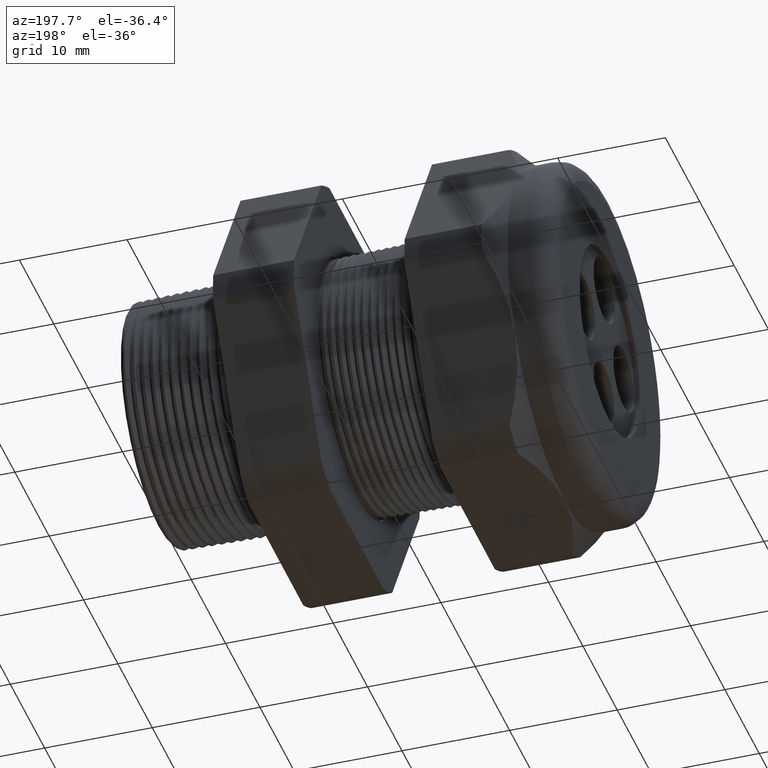
[diagram: clean part render]
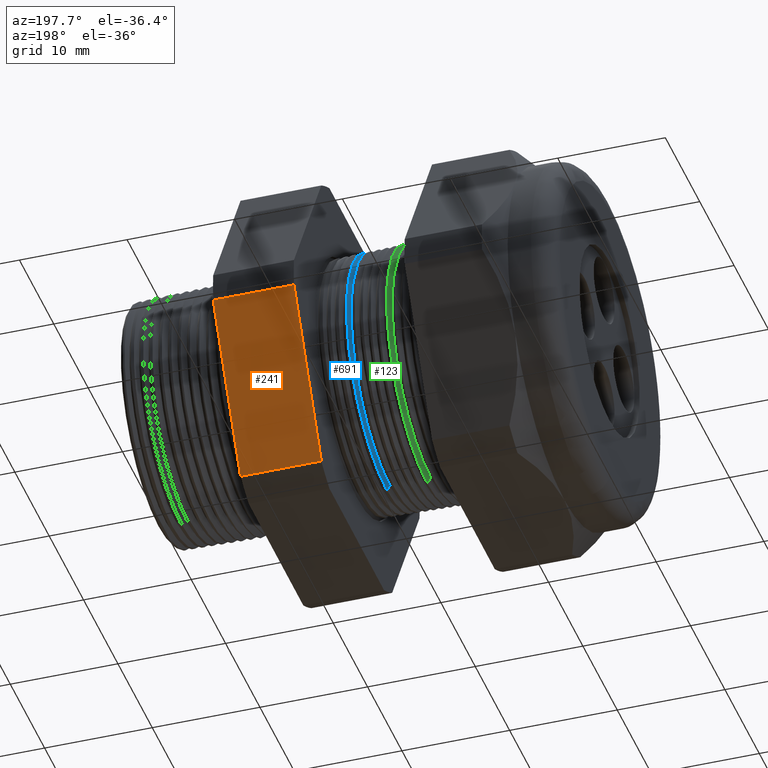
[diagram: same view with three faces highlighted in distinct colors, each labeled with its STEP entity id]
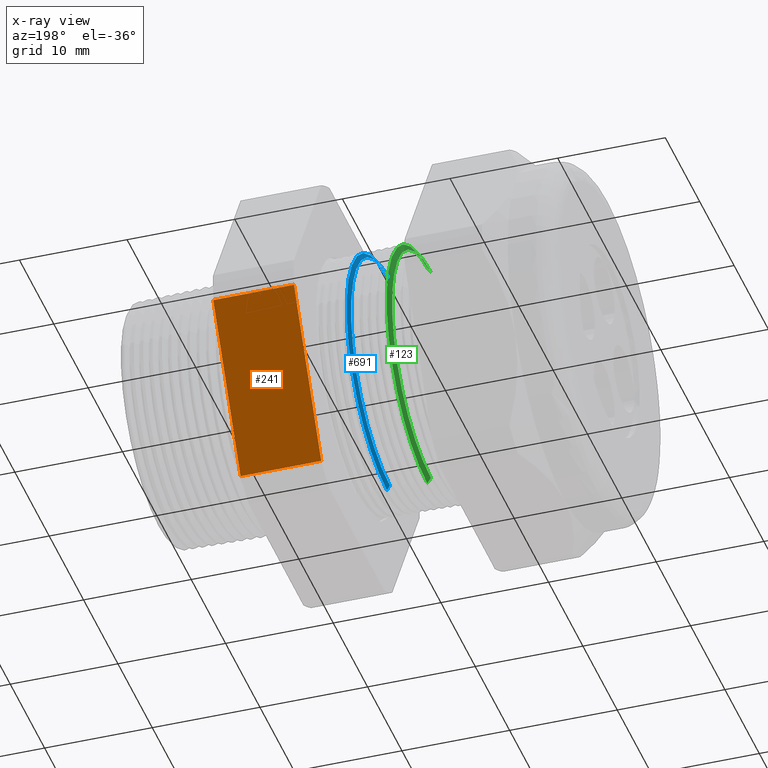
[diagram: x-ray of the same camera — body ghosted, the three highlighted faces saturated]
A machine part, auxiliary view with three faces highlighted in distinct colors.
The next image is the same camera in x-ray (body ghosted, the three faces saturated) — at least one of them is partly hidden behind the body in this view.
Their STEP definitions:

[orange] entity #241 — the highlighted planar face has unit normal (0, 0.866, -0.5).
#162 = EDGE_CURVE ( 'NONE', #5419, #5575, #1106, .T. ) ;
#241 = ADVANCED_FACE ( 'NONE', ( #1212 ), #1215, .T. ) ;
#242 = EDGE_LOOP ( 'NONE', ( #243, #244, #245, #246 ) ) ;
#243 = ORIENTED_EDGE ( 'NONE', *, *, #263, .T. ) ;
#244 = ORIENTED_EDGE ( 'NONE', *, *, #5577, .F. ) ;
#245 = ORIENTED_EDGE ( 'NONE', *, *, #162, .F. ) ;
#246 = ORIENTED_EDGE ( 'NONE', *, *, #5417, .F. ) ;
#263 = EDGE_CURVE ( 'NONE', #5418, #5578, #1189, .T. ) ;
#1103 = DIRECTION ( 'NONE',  ( -1.000000000000000000, 0.0000000000000000000, 0.0000000000000000000 ) ) ;
#1104 = VECTOR ( 'NONE', #1103, 39.37007874015748100 ) ;
#1105 = CARTESIAN_POINT ( 'NONE',  ( 0.1200000000000000900, 0.7194909755756818700, -0.05380507471562089700 ) ) ;
#1106 = LINE ( 'NONE', #1105, #1104 ) ;
#1182 = DIRECTION ( 'NONE',  ( -1.000000000000000000, 0.0000000000000000000, 0.0000000000000000000 ) ) ;
#1183 = VECTOR ( 'NONE', #1182, 39.37007874015748100 ) ;
#1184 = CARTESIAN_POINT ( 'NONE',  ( 0.1200000000000000900, 0.4063420493440886800, -0.5961949252843790100 ) ) ;
#1189 = LINE ( 'NONE', #1184, #1183 ) ;
#1208 = DIRECTION ( 'NONE',  ( 0.0000000000000000000, 0.4999999999999996100, 0.8660254037844388200 ) ) ;
#1209 = DIRECTION ( 'NONE',  ( 0.0000000000000000000, 0.8660254037844388200, -0.4999999999999996100 ) ) ;
#1210 = CARTESIAN_POINT ( 'NONE',  ( 0.1200000000000000900, 0.7194909755756818700, -0.05380507471562089700 ) ) ;
#1211 = AXIS2_PLACEMENT_3D ( 'NONE', #1210, #1209, #1208 ) ;
#1212 = FACE_OUTER_BOUND ( 'NONE', #242, .T. ) ;
#1215 = PLANE ( 'NONE',  #1211 ) ;
#3677 = CARTESIAN_POINT ( 'NONE',  ( -0.3100000000000000000, 0.7194909755756817600, -0.05380507471562094600 ) ) ;
#3678 = CARTESIAN_POINT ( 'NONE',  ( -0.3100000000000000000, 0.4063420493440886800, -0.5961949252843790100 ) ) ;
#3679 = DIRECTION ( 'NONE',  ( 0.0000000000000000000, 0.4999999999999996100, 0.8660254037844388200 ) ) ;
#3680 = VECTOR ( 'NONE', #3679, 39.37007874015748900 ) ;
#3681 = CARTESIAN_POINT ( 'NONE',  ( -0.3100000000000000000, 0.8879165124598849000, 0.2379165124598850200 ) ) ;
#3682 = LINE ( 'NONE', #3681, #3680 ) ;
#4001 = CARTESIAN_POINT ( 'NONE',  ( -0.6052755905511809600, 0.4063420493440886800, -0.5961949252843791200 ) ) ;
#4002 = DIRECTION ( 'NONE',  ( 0.0000000000000000000, -0.4999999999999996100, -0.8660254037844388200 ) ) ;
#4003 = VECTOR ( 'NONE', #4002, 39.37007874015748900 ) ;
#4004 = CARTESIAN_POINT ( 'NONE',  ( -0.6052755905511809600, 0.8879165124598849000, 0.2379165124598850200 ) ) ;
#4005 = LINE ( 'NONE', #4004, #4003 ) ;
#4006 = CARTESIAN_POINT ( 'NONE',  ( -0.6052755905511810800, 0.7194909755756818700, -0.05380507471562089700 ) ) ;
#5417 = EDGE_CURVE ( 'NONE', #5418, #5419, #3682, .T. ) ;
#5418 = VERTEX_POINT ( 'NONE', #3678 ) ;
#5419 = VERTEX_POINT ( 'NONE', #3677 ) ;
#5575 = VERTEX_POINT ( 'NONE', #4006 ) ;
#5577 = EDGE_CURVE ( 'NONE', #5575, #5578, #4005, .T. ) ;
#5578 = VERTEX_POINT ( 'NONE', #4001 ) ;

[blue] entity #691 — the highlighted conical surface has half-angle 58.5 deg.
#691 = ADVANCED_FACE ( 'NONE', ( #1818 ), #1817, .T. ) ;
#692 = EDGE_LOOP ( 'NONE', ( #761, #749, #751, #743 ) ) ;
#742 = VERTEX_POINT ( 'NONE', #1912 ) ;
#743 = ORIENTED_EDGE ( 'NONE', *, *, #744, .F. ) ;
#744 = EDGE_CURVE ( 'NONE', #746, #742, #1911, .T. ) ;
#745 = EDGE_CURVE ( 'NONE', #746, #748, #1907, .T. ) ;
#746 = VERTEX_POINT ( 'NONE', #1902 ) ;
#747 = VERTEX_POINT ( 'NONE', #1901 ) ;
#748 = VERTEX_POINT ( 'NONE', #1900 ) ;
#749 = ORIENTED_EDGE ( 'NONE', *, *, #750, .T. ) ;
#750 = EDGE_CURVE ( 'NONE', #748, #747, #1899, .T. ) ;
#751 = ORIENTED_EDGE ( 'NONE', *, *, #752, .T. ) ;
#752 = EDGE_CURVE ( 'NONE', #747, #742, #1895, .T. ) ;
#761 = ORIENTED_EDGE ( 'NONE', *, *, #745, .T. ) ;
#1813 = DIRECTION ( 'NONE',  ( 0.0000000000000000000, 0.0000000000000000000, -1.000000000000000000 ) ) ;
#1814 = DIRECTION ( 'NONE',  ( 1.000000000000000000, 0.0000000000000000000, 0.0000000000000000000 ) ) ;
#1815 = CARTESIAN_POINT ( 'NONE',  ( -0.7265405736958171500, 0.0000000000000000000, 0.0000000000000000000 ) ) ;
#1816 = AXIS2_PLACEMENT_3D ( 'NONE', #1815, #1814, #1813 ) ;
#1817 = CONICAL_SURFACE ( 'NONE', #1816, 0.4446307351718083400, 1.021017612416699200 ) ;
#1818 = FACE_OUTER_BOUND ( 'NONE', #692, .T. ) ;
#1891 = DIRECTION ( 'NONE',  ( 0.0000000000000000000, 0.0000000000000000000, -1.000000000000000000 ) ) ;
#1892 = DIRECTION ( 'NONE',  ( -1.000000000000000000, 0.0000000000000000000, 0.0000000000000000000 ) ) ;
#1893 = CARTESIAN_POINT ( 'NONE',  ( -0.7157215362418474200, 0.0000000000000000000, 0.0000000000000000000 ) ) ;
#1894 = AXIS2_PLACEMENT_3D ( 'NONE', #1893, #1892, #1891 ) ;
#1895 = CIRCLE ( 'NONE', #1894, 0.4622857996941776600 ) ;
#1896 = DIRECTION ( 'NONE',  ( 0.5224985647159348100, 1.044183048100722500E-016, 0.8526401643541007300 ) ) ;
#1897 = VECTOR ( 'NONE', #1896, 39.37007874015748900 ) ;
#1898 = CARTESIAN_POINT ( 'NONE',  ( -0.7265405736958171500, 5.445156066306895900E-017, 0.4446307351718083400 ) ) ;
#1899 = LINE ( 'NONE', #1898, #1897 ) ;
#1900 = CARTESIAN_POINT ( 'NONE',  ( -0.7265405736958171500, 0.0000000000000000000, 0.4446307351718083400 ) ) ;
#1901 = CARTESIAN_POINT ( 'NONE',  ( -0.7157215362418474200, 0.0000000000000000000, 0.4622857996941776600 ) ) ;
#1902 = CARTESIAN_POINT ( 'NONE',  ( -0.7265405736958171500, 5.556581128099629100E-017, -0.4446307351718083400 ) ) ;
#1903 = DIRECTION ( 'NONE',  ( 0.0000000000000000000, 0.0000000000000000000, -1.000000000000000000 ) ) ;
#1904 = DIRECTION ( 'NONE',  ( 1.000000000000000000, 0.0000000000000000000, 0.0000000000000000000 ) ) ;
#1905 = CARTESIAN_POINT ( 'NONE',  ( -0.7265405736958171500, 0.0000000000000000000, 0.0000000000000000000 ) ) ;
#1906 = AXIS2_PLACEMENT_3D ( 'NONE', #1905, #1904, #1903 ) ;
#1907 = CIRCLE ( 'NONE', #1906, 0.4446307351718083400 ) ;
#1908 = DIRECTION ( 'NONE',  ( 0.5224985647159348100, 0.0000000000000000000, -0.8526401643541007300 ) ) ;
#1909 = VECTOR ( 'NONE', #1908, 39.37007874015748900 ) ;
#1910 = CARTESIAN_POINT ( 'NONE',  ( -0.7265405736958171500, 0.0000000000000000000, -0.4446307351718083400 ) ) ;
#1911 = LINE ( 'NONE', #1910, #1909 ) ;
#1912 = CARTESIAN_POINT ( 'NONE',  ( -0.7157215362418474200, 5.661368248867491500E-017, -0.4622857996941776600 ) ) ;

[green] entity #123 — the highlighted conical surface has half-angle 58.5 deg.
#120 = EDGE_LOOP ( 'NONE', ( #152, #149, #145, #147 ) ) ;
#123 = ADVANCED_FACE ( 'NONE', ( #998 ), #997, .T. ) ;
#131 = VERTEX_POINT ( 'NONE', #1034 ) ;
#143 = EDGE_CURVE ( 'NONE', #131, #144, #1021, .T. ) ;
#144 = VERTEX_POINT ( 'NONE', #1073 ) ;
#145 = ORIENTED_EDGE ( 'NONE', *, *, #146, .T. ) ;
#146 = EDGE_CURVE ( 'NONE', #148, #144, #1072, .T. ) ;
#147 = ORIENTED_EDGE ( 'NONE', *, *, #143, .F. ) ;
#148 = VERTEX_POINT ( 'NONE', #1067 ) ;
#149 = ORIENTED_EDGE ( 'NONE', *, *, #150, .T. ) ;
#150 = EDGE_CURVE ( 'NONE', #151, #148, #1066, .T. ) ;
#151 = VERTEX_POINT ( 'NONE', #1062 ) ;
#152 = ORIENTED_EDGE ( 'NONE', *, *, #153, .T. ) ;
#153 = EDGE_CURVE ( 'NONE', #131, #151, #1061, .T. ) ;
#992 = DIRECTION ( 'NONE',  ( 0.0000000000000000000, 0.0000000000000000000, -1.000000000000000000 ) ) ;
#993 = DIRECTION ( 'NONE',  ( 1.000000000000000000, 0.0000000000000000000, 0.0000000000000000000 ) ) ;
#994 = CARTESIAN_POINT ( 'NONE',  ( -0.8765405736958171700, 0.0000000000000000000, 0.0000000000000000000 ) ) ;
#995 = AXIS2_PLACEMENT_3D ( 'NONE', #994, #993, #992 ) ;
#997 = CONICAL_SURFACE ( 'NONE', #995, 0.4446307351718083400, 1.021017612416699200 ) ;
#998 = FACE_OUTER_BOUND ( 'NONE', #120, .T. ) ;
#1021 = LINE ( 'NONE', #1076, #1075 ) ;
#1034 = CARTESIAN_POINT ( 'NONE',  ( -0.8765405736958171700, 5.580979396460794700E-017, -0.4446307351718083400 ) ) ;
#1057 = DIRECTION ( 'NONE',  ( 0.0000000000000000000, 0.0000000000000000000, -1.000000000000000000 ) ) ;
#1058 = DIRECTION ( 'NONE',  ( 1.000000000000000000, 0.0000000000000000000, 0.0000000000000000000 ) ) ;
#1059 = CARTESIAN_POINT ( 'NONE',  ( -0.8765405736958171700, 0.0000000000000000000, 0.0000000000000000000 ) ) ;
#1060 = AXIS2_PLACEMENT_3D ( 'NONE', #1059, #1058, #1057 ) ;
#1061 = CIRCLE ( 'NONE', #1060, 0.4446307351718083400 ) ;
#1062 = CARTESIAN_POINT ( 'NONE',  ( -0.8765405736958171700, 0.0000000000000000000, 0.4446307351718083400 ) ) ;
#1063 = DIRECTION ( 'NONE',  ( 0.5224985647159348100, 1.044183048100722500E-016, 0.8526401643541007300 ) ) ;
#1064 = VECTOR ( 'NONE', #1063, 39.37007874015748900 ) ;
#1065 = CARTESIAN_POINT ( 'NONE',  ( -0.8765405736958171700, 5.445156066306895900E-017, 0.4446307351718083400 ) ) ;
#1066 = LINE ( 'NONE', #1065, #1064 ) ;
#1067 = CARTESIAN_POINT ( 'NONE',  ( -0.8633525379665555300, 0.0000000000000000000, 0.4661516535265203800 ) ) ;
#1068 = DIRECTION ( 'NONE',  ( 0.0000000000000000000, 0.0000000000000000000, -1.000000000000000000 ) ) ;
#1069 = DIRECTION ( 'NONE',  ( -1.000000000000000000, 0.0000000000000000000, 0.0000000000000000000 ) ) ;
#1070 = CARTESIAN_POINT ( 'NONE',  ( -0.8633525379665555300, 0.0000000000000000000, 0.0000000000000000000 ) ) ;
#1071 = AXIS2_PLACEMENT_3D ( 'NONE', #1070, #1069, #1068 ) ;
#1072 = CIRCLE ( 'NONE', #1071, 0.4661516535265203300 ) ;
#1073 = CARTESIAN_POINT ( 'NONE',  ( -0.8633525379665555300, 5.708711304084992300E-017, -0.4661516535265203800 ) ) ;
#1074 = DIRECTION ( 'NONE',  ( 0.5224985647159348100, 0.0000000000000000000, -0.8526401643541007300 ) ) ;
#1075 = VECTOR ( 'NONE', #1074, 39.37007874015748900 ) ;
#1076 = CARTESIAN_POINT ( 'NONE',  ( -0.8765405736958171700, 0.0000000000000000000, -0.4446307351718083400 ) ) ;